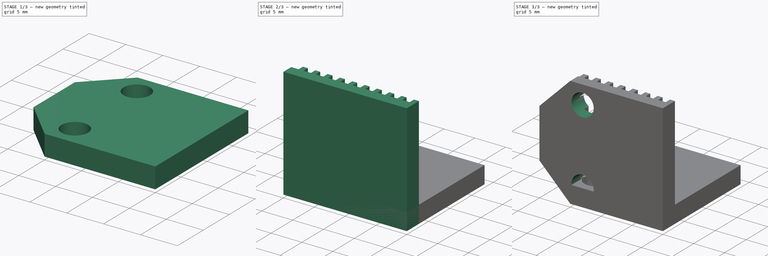
[diagram: build sequence overview — one tinted view per stage of 3, left to right]
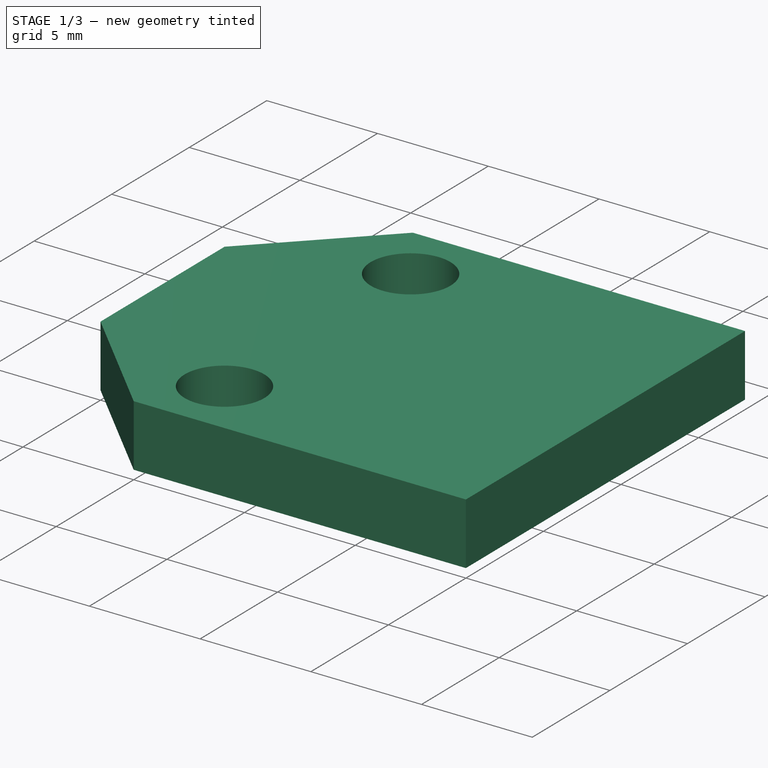
[diagram: stage 1 of 3 — iso view after this stage's code; geometry added in this stage tinted green]
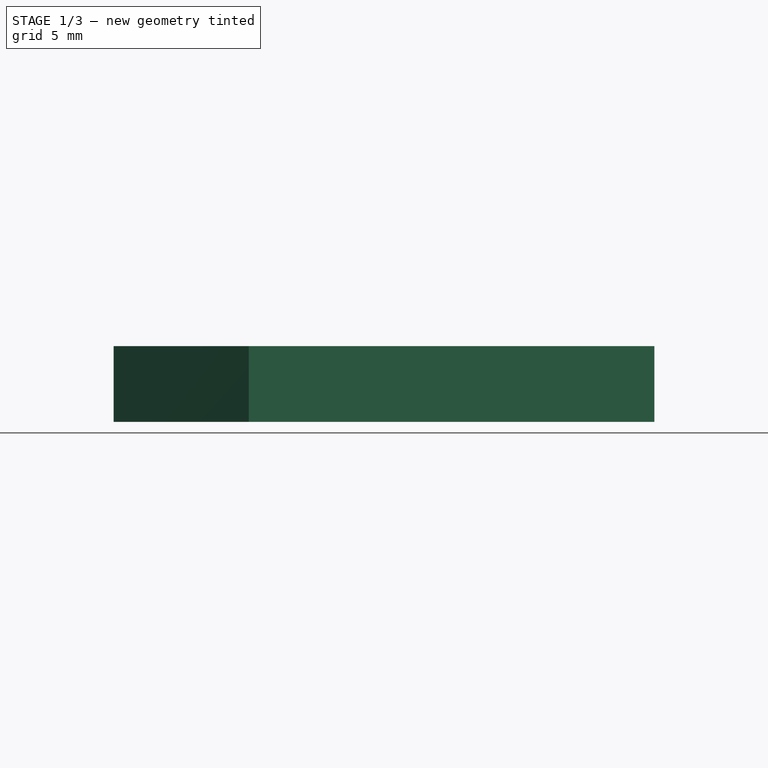
[diagram: stage 1 of 3 — front view after this stage's code; geometry added in this stage tinted green]
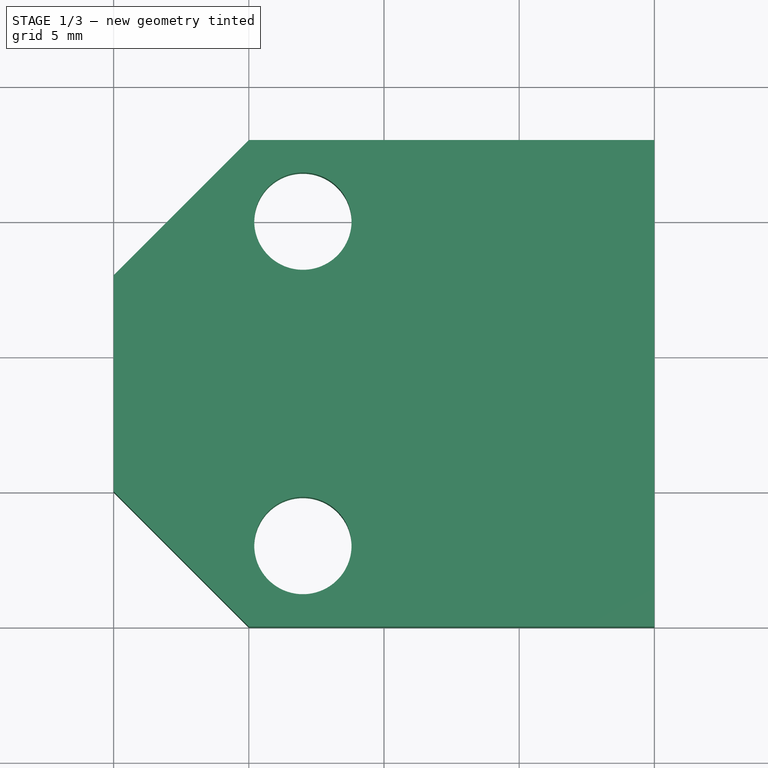
[diagram: stage 1 of 3 — top view after this stage's code; geometry added in this stage tinted green]
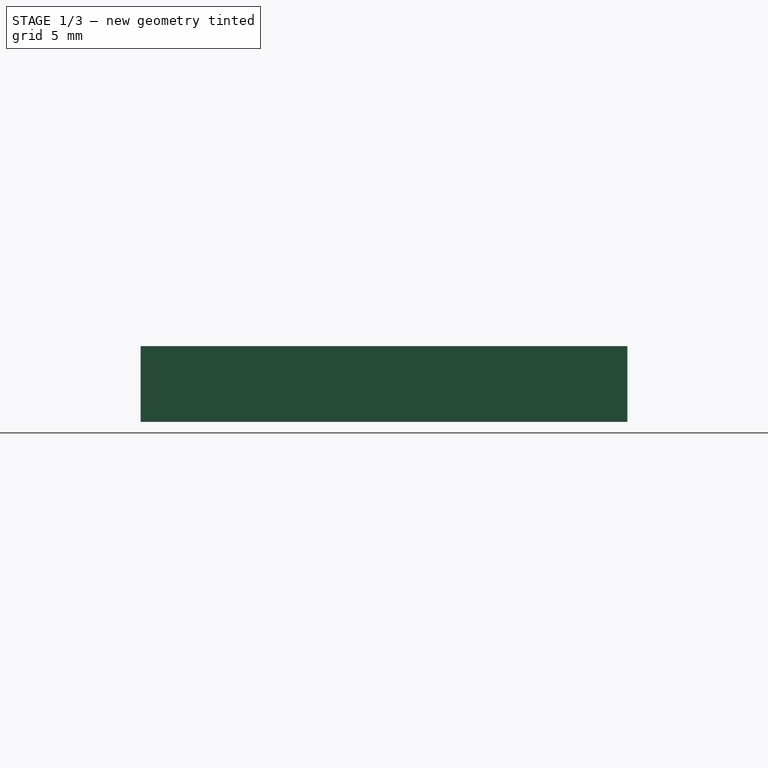
[diagram: stage 1 of 3 — right view after this stage's code; geometry added in this stage tinted green]
FCSTD DOCUMENT  (FreeCAD 0.16R6706 (Git))
Label: Esteira GT2
License: All rights reserved
LicenseURL: http://en.wikipedia.org/wiki/All_rights_reserved
objects: Sketcher::SketchObject×3, PartDesign::Pad×2, PartDesign::Chamfer×2, PartDesign::Pocket×1, App::DocumentObjectGroup×1
note: 11 computed .brp shape members not serialized (recipe doc carries the construction recipe); baked Part::Feature solids carry a one-line shape summary decoded from their .brp

FEATURE [Sketcher::SketchObject] Sketch002
  sketch-geometry (8):
    g0: LineSegment StartX=-20 StartY=18 StartZ=0 EndX=0 EndY=18 EndZ=0
    g1: LineSegment StartX=0 StartY=18 StartZ=0 EndX=0 EndY=0 EndZ=0
    g2: LineSegment StartX=0 StartY=0 StartZ=0 EndX=-20 EndY=0 EndZ=0
    g3: LineSegment StartX=-20 StartY=0 StartZ=0 EndX=-20 EndY=18 EndZ=0
    g4: LineSegment [constr] StartX=-13 StartY=9 StartZ=0 EndX=0 EndY=9 EndZ=0
    g5: LineSegment [constr] StartX=-13 StartY=15 StartZ=0 EndX=-13 EndY=3 EndZ=0
    g6: Circle CenterX=-13 CenterY=15 CenterZ=0 NormalX=0 NormalY=0 NormalZ=1 Radius=1.8
    g7: Circle CenterX=-13 CenterY=3 CenterZ=0 NormalX=0 NormalY=0 NormalZ=1 Radius=1.8
  constraints (21):
    c: Coincident(g0,g1)
    c: Coincident(g1,g2)
    c: Coincident(g2,g3)
    c: Coincident(g3,g0)
    c: Horizontal(g0)
    c: Horizontal(g2)
    c: Vertical(g1)
    c: Vertical(g3)
    c: DistanceY(g1,g1) = 18
    c: DistanceX(g2,g2) = 20
    c: Coincident(g-1,g1)
    c: Horizontal(g4)
    c: DistanceX(g4,g4) = 13
    c: Symmetric(g0,g-1,g4)
    c: Vertical(g5)
    c: Symmetric(g5,g5,g4)
    c: DistanceY(g5,g5) = 12
    c: Radius(g6) = 1.8
    c: Equal(g6,g7) = 1.8
    c: Coincident(g5,g7)
    c: Coincident(g5,g6)
FEATURE [PartDesign::Pad] Pad001  label="Tampa"
  Length = 2.8
  Length2 = 100
  Sketch = -> Sketch002
  Type = 0
FEATURE [App::DocumentObjectGroup] Group  label="gEsteira"
  Group = -> [Pad,Pocket,Chamfer]
FEATURE [PartDesign::Chamfer] Chamfer001
  Base = -> Pad001 [Edge1,Edge8]
  Size = 5
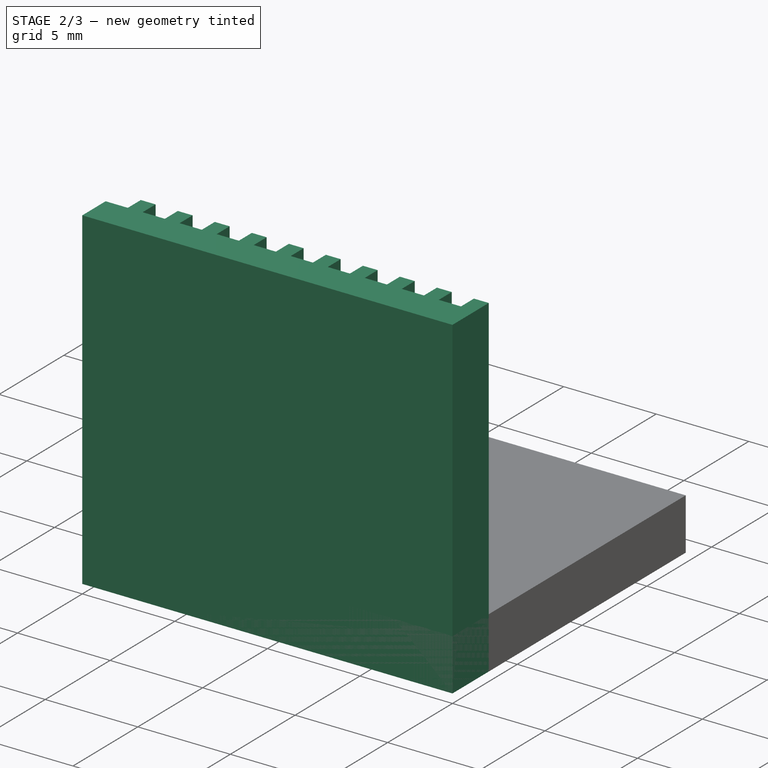
[diagram: stage 2 of 3 — iso view after this stage's code; geometry added in this stage tinted green]
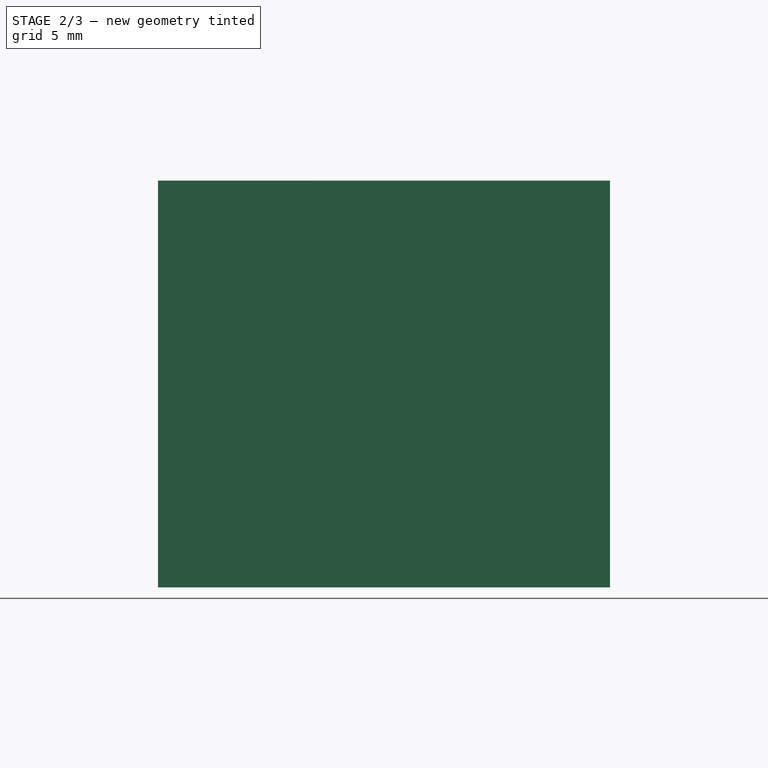
[diagram: stage 2 of 3 — front view after this stage's code; geometry added in this stage tinted green]
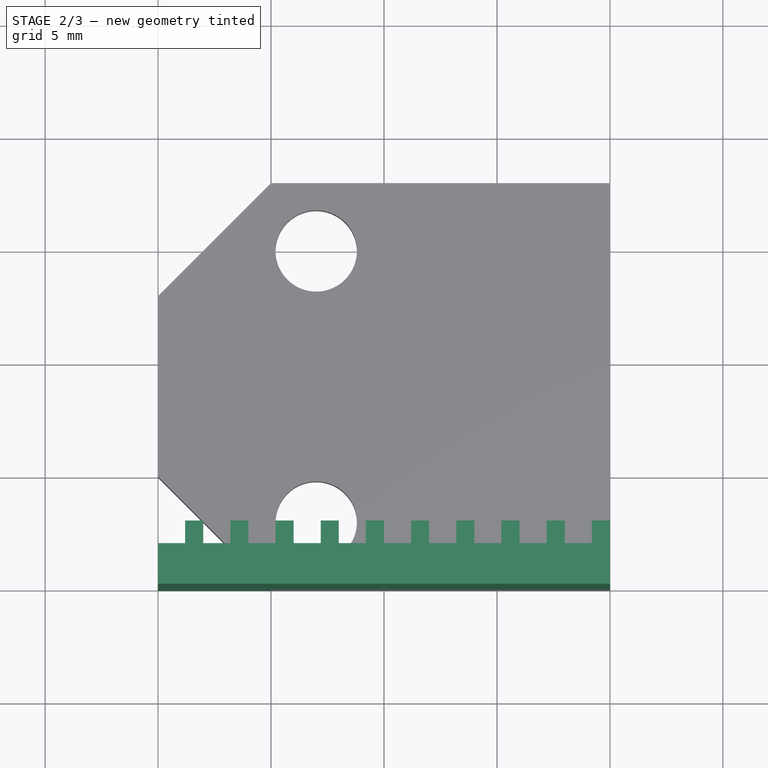
[diagram: stage 2 of 3 — top view after this stage's code; geometry added in this stage tinted green]
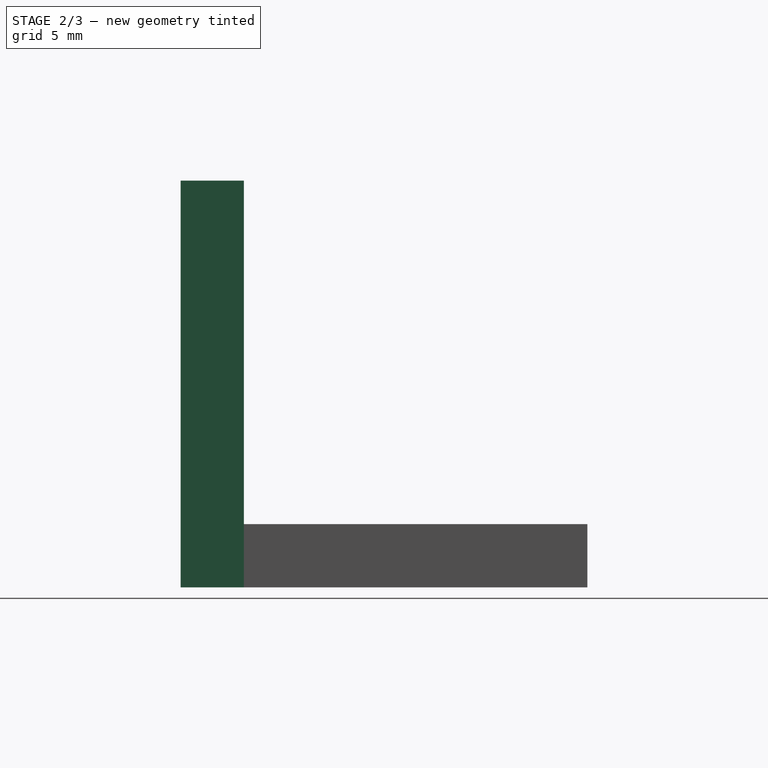
[diagram: stage 2 of 3 — right view after this stage's code; geometry added in this stage tinted green]
FEATURE [Sketcher::SketchObject] Sketch
  sketch-geometry (42):
    g0: LineSegment StartX=-20 StartY=1.8 StartZ=0 EndX=-18.8 EndY=1.8 EndZ=0
    g1: LineSegment StartX=-18.8 StartY=1.8 StartZ=0 EndX=-18.8 EndY=2.8 EndZ=0
    g2: LineSegment StartX=-18.8 StartY=2.8 StartZ=0 EndX=-18 EndY=2.8 EndZ=0
    g3: LineSegment StartX=-18 StartY=2.8 StartZ=0 EndX=-18 EndY=1.8 EndZ=0
    g4: LineSegment StartX=-18 StartY=1.8 StartZ=0 EndX=-16.8 EndY=1.8 EndZ=0
    g5: LineSegment StartX=-16.8 StartY=1.8 StartZ=0 EndX=-16.8 EndY=2.8 EndZ=0
    g6: LineSegment StartX=-16.8 StartY=2.8 StartZ=0 EndX=-16 EndY=2.8 EndZ=0
    g7: LineSegment StartX=-16 StartY=2.8 StartZ=0 EndX=-16 EndY=1.8 EndZ=0
    g8: LineSegment StartX=-16 StartY=1.8 StartZ=0 EndX=-14.8 EndY=1.8 EndZ=0
    g9: LineSegment StartX=-14.8 StartY=1.8 StartZ=0 EndX=-14.8 EndY=2.8 EndZ=0
    g10: LineSegment StartX=-14.8 StartY=2.8 StartZ=0 EndX=-14 EndY=2.8 EndZ=0
    g11: LineSegment StartX=-14 StartY=2.8 StartZ=0 EndX=-14 EndY=1.8 EndZ=0
    g12: LineSegment StartX=-14 StartY=1.8 StartZ=0 EndX=-12.8 EndY=1.8 EndZ=0
    g13: LineSegment StartX=-12.8 StartY=1.8 StartZ=0 EndX=-12.8 EndY=2.8 EndZ=0
    g14: LineSegment StartX=-12.8 StartY=2.8 StartZ=0 EndX=-12 EndY=2.8 EndZ=0
    g15: LineSegment StartX=-12 StartY=2.8 StartZ=0 EndX=-12 EndY=1.8 EndZ=0
    g16: LineSegment StartX=-12 StartY=1.8 StartZ=0 EndX=-10.8 EndY=1.8 EndZ=0
    g17: LineSegment StartX=-10.8 StartY=1.8 StartZ=0 EndX=-10.8 EndY=2.8 EndZ=0
    g18: LineSegment StartX=-10.8 StartY=2.8 StartZ=0 EndX=-10 EndY=2.8 EndZ=0
    g19: LineSegment StartX=-10 StartY=2.8 StartZ=0 EndX=-10 EndY=1.8 EndZ=0
    g20: LineSegment StartX=-10 StartY=1.8 StartZ=0 EndX=-8.8 EndY=1.8 EndZ=0
    g21: LineSegment StartX=-8.8 StartY=1.8 StartZ=0 EndX=-8.8 EndY=2.8 EndZ=0
    g22: LineSegment StartX=-8.8 StartY=2.8 StartZ=0 EndX=-8 EndY=2.8 EndZ=0
    g23: LineSegment StartX=-8 StartY=2.8 StartZ=0 EndX=-8 EndY=1.8 EndZ=0
    g24: LineSegment StartX=-8 StartY=1.8 StartZ=0 EndX=-6.8 EndY=1.8 EndZ=0
    g25: LineSegment StartX=-6.8 StartY=1.8 StartZ=0 EndX=-6.8 EndY=2.8 EndZ=0
    g26: LineSegment StartX=-6.8 StartY=2.8 StartZ=0 EndX=-6 EndY=2.8 EndZ=0
    g27: LineSegment StartX=-6 StartY=2.8 StartZ=0 EndX=-6 EndY=1.8 EndZ=0
    g28: LineSegment StartX=-6 StartY=1.8 StartZ=0 EndX=-4.8 EndY=1.8 EndZ=0
    g29: LineSegment StartX=-4.8 StartY=1.8 StartZ=0 EndX=-4.8 EndY=2.8 EndZ=0
    g30: LineSegment StartX=-4.8 StartY=2.8 StartZ=0 EndX=-4 EndY=2.8 EndZ=0
    g31: LineSegment StartX=-4 StartY=2.8 StartZ=0 EndX=-4 EndY=1.8 EndZ=0
    g32: LineSegment StartX=-4 StartY=1.8 StartZ=0 EndX=-2.8 EndY=1.8 EndZ=0
    g33: LineSegment StartX=-2.8 StartY=1.8 StartZ=0 EndX=-2.8 EndY=2.8 EndZ=0
    g34: LineSegment StartX=-2.8 StartY=2.8 StartZ=0 EndX=-2 EndY=2.8 EndZ=0
    g35: LineSegment StartX=-2 StartY=2.8 StartZ=0 EndX=-2 EndY=1.8 EndZ=0
    g36: LineSegment StartX=-2 StartY=1.8 StartZ=0 EndX=-0.8 EndY=1.8 EndZ=0
    g37: LineSegment StartX=-0.8 StartY=1.8 StartZ=0 EndX=-0.8 EndY=2.8 EndZ=0
    g38: LineSegment StartX=-0.8 StartY=2.8 StartZ=0 EndX=0 EndY=2.8 EndZ=0
    g39: LineSegment StartX=-20 StartY=1.8 StartZ=0 EndX=-20 EndY=0 EndZ=0
    g40: LineSegment StartX=-20 StartY=0 StartZ=0 EndX=0 EndY=0 EndZ=0
    g41: LineSegment StartX=0 StartY=2.8 StartZ=0 EndX=0 EndY=0 EndZ=0
  constraints (125):
    c: Coincident(g0,g1)
    c: Coincident(g1,g2)
    c: Coincident(g2,g3)
    c: Horizontal(g0)
    c: Horizontal(g2)
    c: Vertical(g1)
    c: Vertical(g3)
    c: DistanceX(g0,g0) = 1.2
    c: DistanceX(g2,g2) = 0.8
    c: DistanceY(g1,g1) = 1
    c: Equal(g1,g3)
    c: Coincident(g4,g5)
    c: Coincident(g5,g6)
    c: Coincident(g6,g7)
    c: Horizontal(g4)
    c: Horizontal(g6)
    c: Vertical(g5)
    c: Vertical(g7)
    c: Equal(g0,g4) = 1.2
    c: Equal(g2,g6) = 0.8
    c: Equal(g1,g5) = 1
    c: Equal(g5,g7)
    c: Coincident(g8,g9)
    c: Coincident(g9,g10)
    c: Coincident(g10,g11)
    c: Horizontal(g8)
    c: Horizontal(g10)
    c: Vertical(g9)
    c: Vertical(g11)
    c: Equal(g0,g8) = 1.2
    c: Equal(g2,g10) = 0.8
    c: Equal(g1,g9) = 1
    c: Equal(g9,g11)
    c: Coincident(g12,g13)
    c: Coincident(g13,g14)
    c: Coincident(g14,g15)
    c: Horizontal(g12)
    c: Horizontal(g14)
    c: Vertical(g13)
    c: Vertical(g15)
    c: Equal(g0,g12) = 1.2
    c: Equal(g2,g14) = 0.8
    c: Equal(g1,g13) = 1
    c: Equal(g13,g15)
    c: Coincident(g16,g17)
    c: Coincident(g17,g18)
    c: Coincident(g18,g19)
    c: Horizontal(g16)
    c: Horizontal(g18)
    c: Vertical(g17)
    c: Vertical(g19)
    c: Equal(g0,g16) = 1.2
    c: Equal(g2,g18) = 0.8
    c: Equal(g1,g17) = 1
    c: Equal(g17,g19)
    c: Coincident(g20,g21)
    c: Coincident(g21,g22)
    c: Coincident(g22,g23)
    c: Horizontal(g20)
    c: Horizontal(g22)
    c: Vertical(g21)
    c: Vertical(g23)
    c: Equal(g0,g20) = 1.2
    c: Equal(g2,g22) = 0.8
    c: Equal(g1,g21) = 1
    c: Equal(g21,g23)
    c: Coincident(g24,g25)
    c: Coincident(g25,g26)
    c: Coincident(g26,g27)
    c: Horizontal(g24)
    c: Horizontal(g26)
    c: Vertical(g25)
    c: Vertical(g27)
    c: Equal(g0,g24) = 1.2
    c: Equal(g2,g26) = 0.8
    c: Equal(g1,g25) = 1
    c: Equal(g25,g27)
    c: Coincident(g28,g29)
    c: Coincident(g29,g30)
    c: Coincident(g30,g31)
    c: Horizontal(g28)
    c: Horizontal(g30)
    c: Vertical(g29)
    c: Vertical(g31)
    c: Equal(g0,g28) = 1.2
    c: Equal(g2,g30) = 0.8
    c: Equal(g1,g29) = 1
    c: Equal(g29,g31)
    c: Coincident(g32,g33)
    c: Coincident(g33,g34)
    c: Coincident(g34,g35)
    c: Horizontal(g32)
    c: Horizontal(g34)
    c: Vertical(g33)
    c: Vertical(g35)
    c: Equal(g0,g32) = 1.2
    c: Equal(g2,g34) = 0.8
    c: Equal(g1,g33) = 1
    c: Equal(g33,g35)
    c: Coincident(g36,g37)
    c: Coincident(g37,g38)
    c: Horizontal(g36)
    c: Horizontal(g38)
    c: Vertical(g37)
    c: Equal(g0,g36) = 1.2
    c: Equal(g2,g38) = 0.8
    c: Equal(g1,g37) = 1
    c: Coincident(g3,g4)
    c: Coincident(g7,g8)
    c: Coincident(g11,g12)
    c: Coincident(g15,g16)
    c: Coincident(g19,g20)
    c: Coincident(g23,g24)
    c: Coincident(g27,g28)
    c: Coincident(g31,g32)
    c: Coincident(g35,g36)
    c: DistanceY(g39,g39) = 1.8
    c: Coincident(g0,g39)
    c: Vertical(g39)
    c: Coincident(g39,g40)
    c: Horizontal(g40)
    c: Coincident(g38,g41)
    c: Coincident(g40,g41)
    c: Vertical(g41)
    c: Coincident(g-1,g40)
FEATURE [PartDesign::Pad] Pad  label="Dentes"
  Length = 18
  Length2 = 100
  Sketch = -> Sketch
  Type = 0
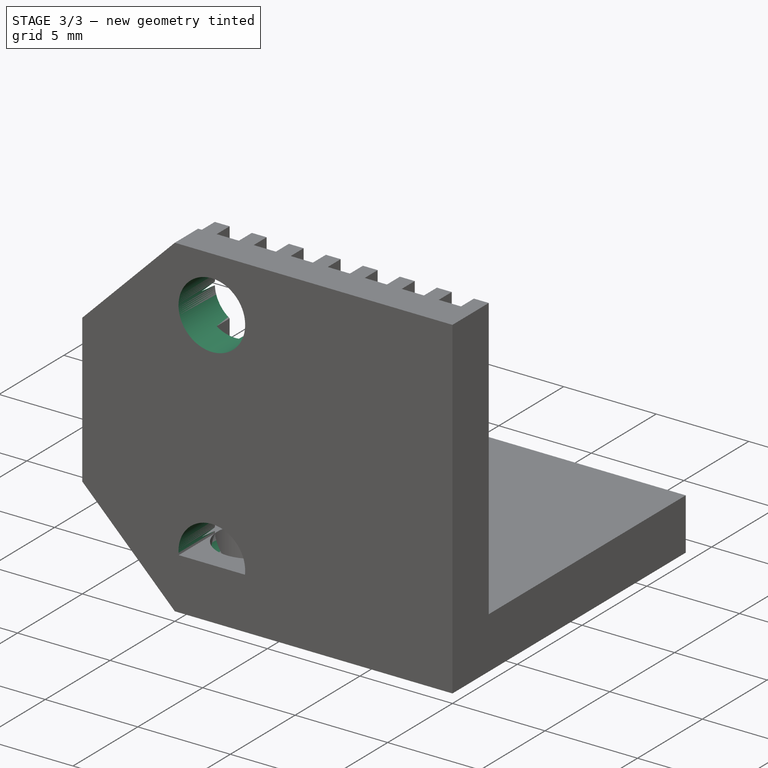
[diagram: stage 3 of 3 — iso view after this stage's code; geometry added in this stage tinted green]
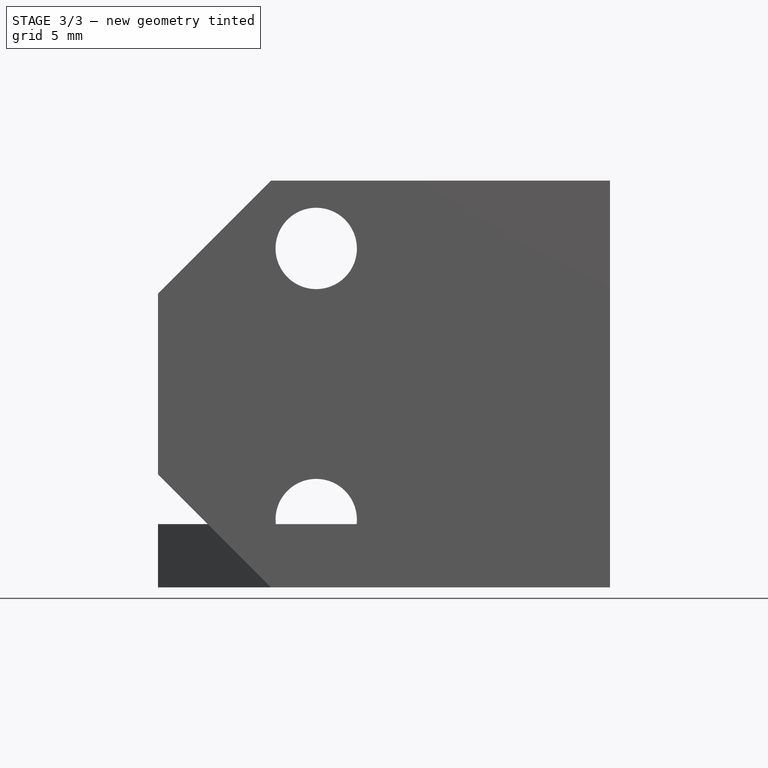
[diagram: stage 3 of 3 — front view after this stage's code; geometry added in this stage tinted green]
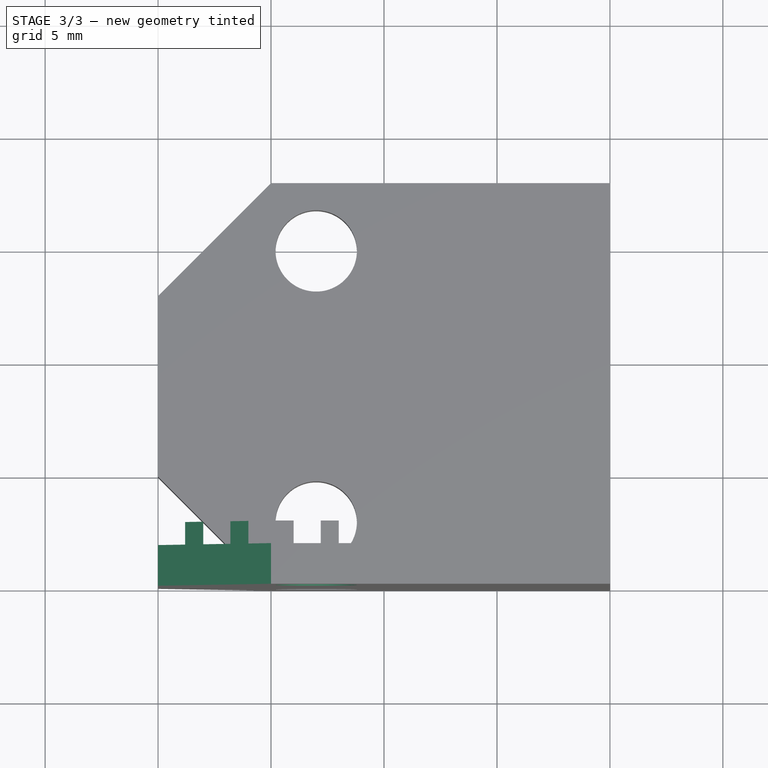
[diagram: stage 3 of 3 — top view after this stage's code; geometry added in this stage tinted green]
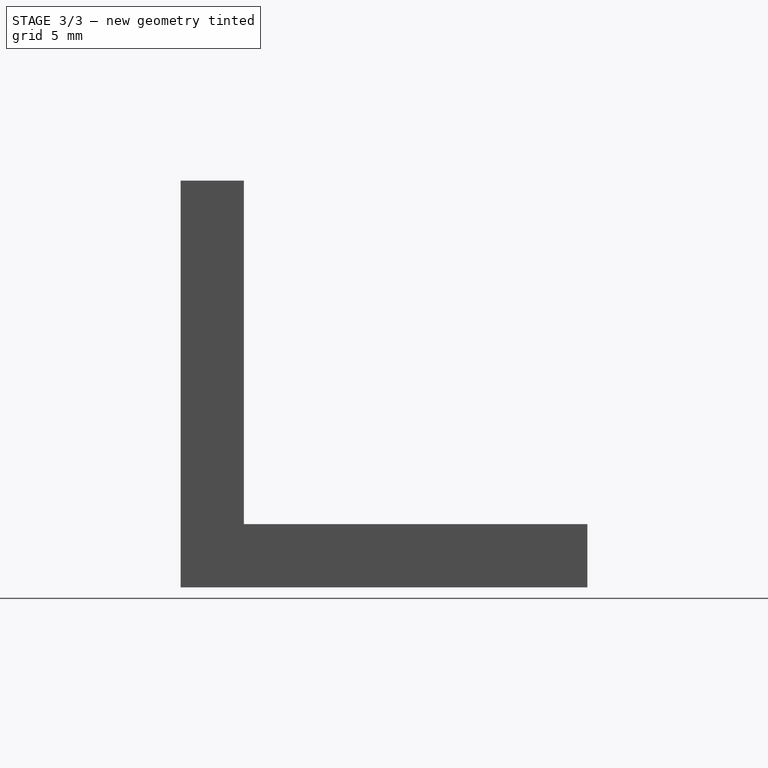
[diagram: stage 3 of 3 — right view after this stage's code; geometry added in this stage tinted green]
FEATURE [Sketcher::SketchObject] Sketch001
  ExternalGeometry = -> [Pad]
  Placement = pos=(0,0,0) rot=(1,0,0;1.5708rad)
  Support = -> Pad [Face41]
  sketch-geometry (4):
    g0: LineSegment [constr] StartX=-13 StartY=9 StartZ=0 EndX=0 EndY=9 EndZ=0
    g1: LineSegment [constr] StartX=-13 StartY=15 StartZ=0 EndX=-13 EndY=3 EndZ=0
    g2: Circle CenterX=-13 CenterY=15 CenterZ=0 NormalX=0 NormalY=0 NormalZ=1 Radius=1.8
    g3: Circle CenterX=-13 CenterY=3 CenterZ=0 NormalX=0 NormalY=0 NormalZ=1 Radius=1.8
  constraints (10):
    c: Horizontal(g0)
    c: Symmetric(g-3,g-3,g0)
    c: DistanceX(g0,g0) = 13
    c: Vertical(g1)
    c: Symmetric(g1,g1,g0)
    c: DistanceY(g1,g1) = 12
    c: Radius(g2) = 1.8
    c: Equal(g2,g3) = 1.8
    c: Coincident(g1,g3)
    c: Coincident(g2,g1)
FEATURE [PartDesign::Pocket] Pocket  label="Esteira"
  Length = 5
  Sketch = -> Sketch001
  Type = 0
FEATURE [PartDesign::Chamfer] Chamfer
  Base = -> Pocket [Edge7,Edge6]
  Size = 5
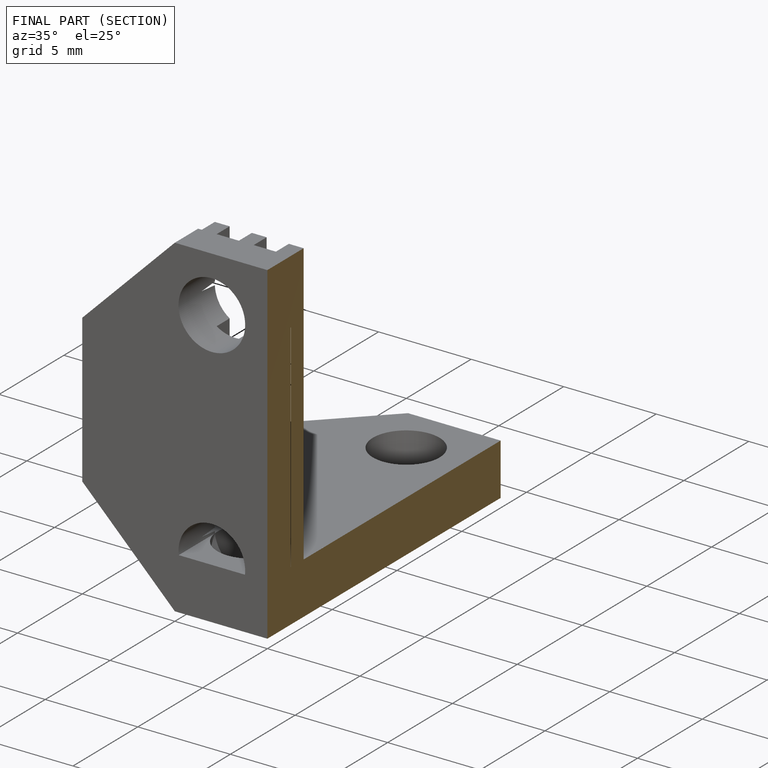
[diagram: finished part — half-section view (interior)]
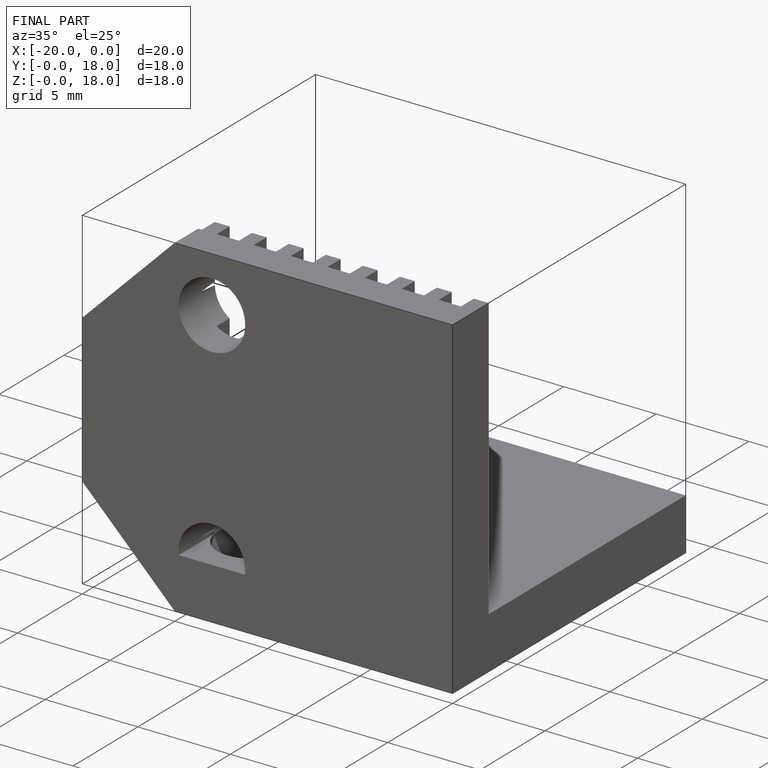
[diagram: finished part — iso view with bounding-box wireframe]
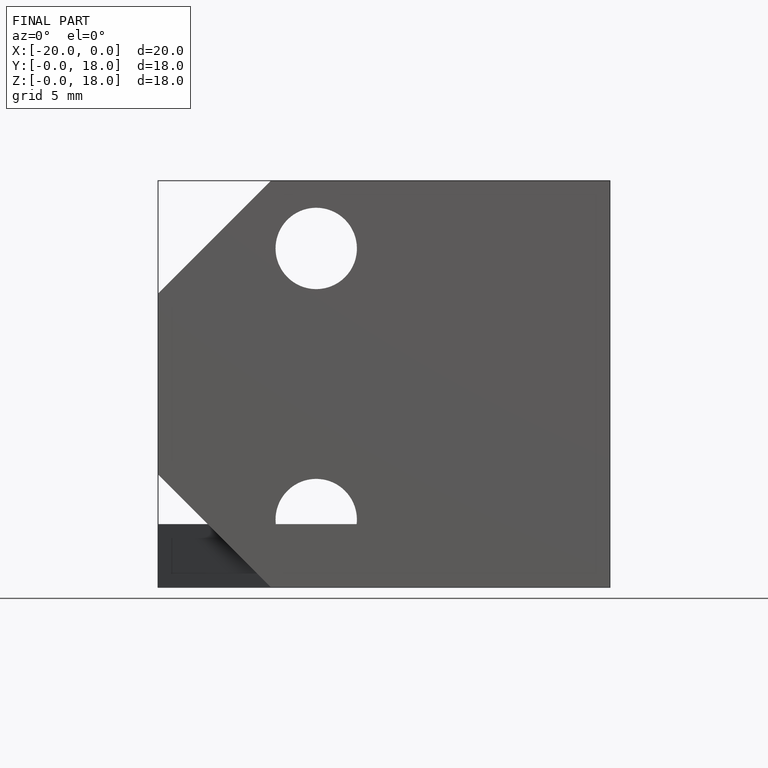
[diagram: finished part — front view with bounding-box wireframe]
